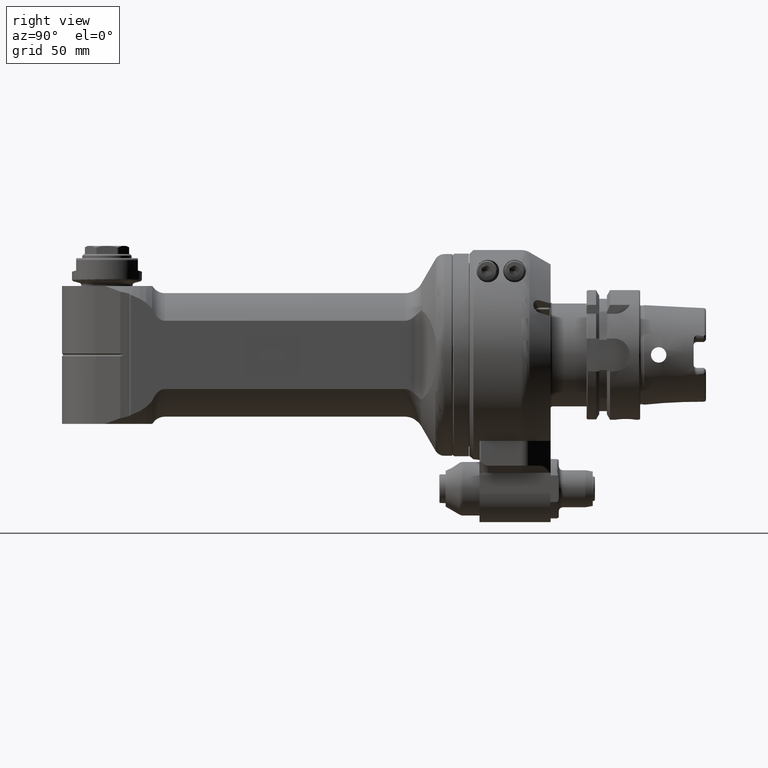
[diagram: clean part render]
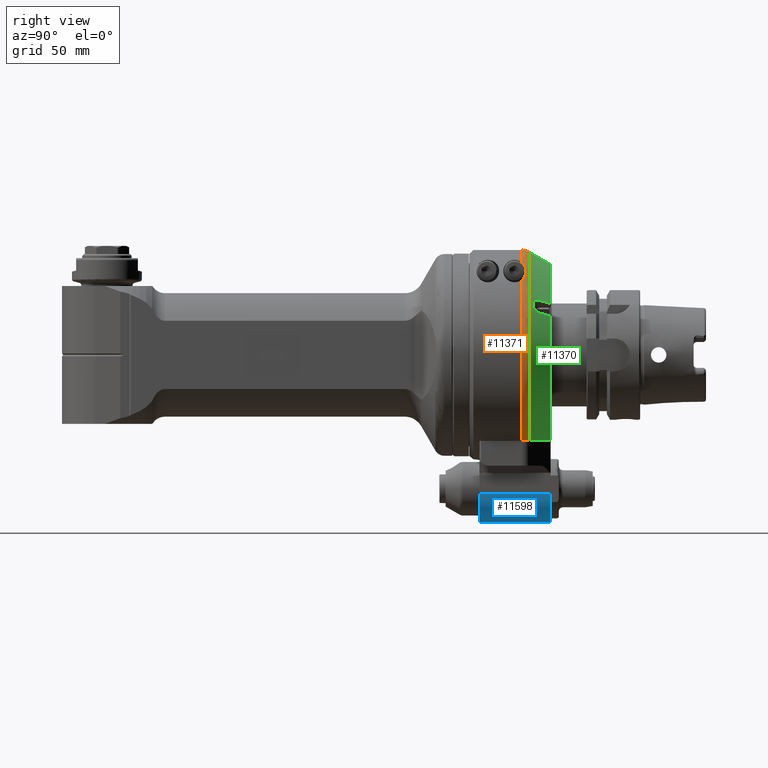
[diagram: same view with three faces highlighted in distinct colors, each labeled with its STEP entity id]
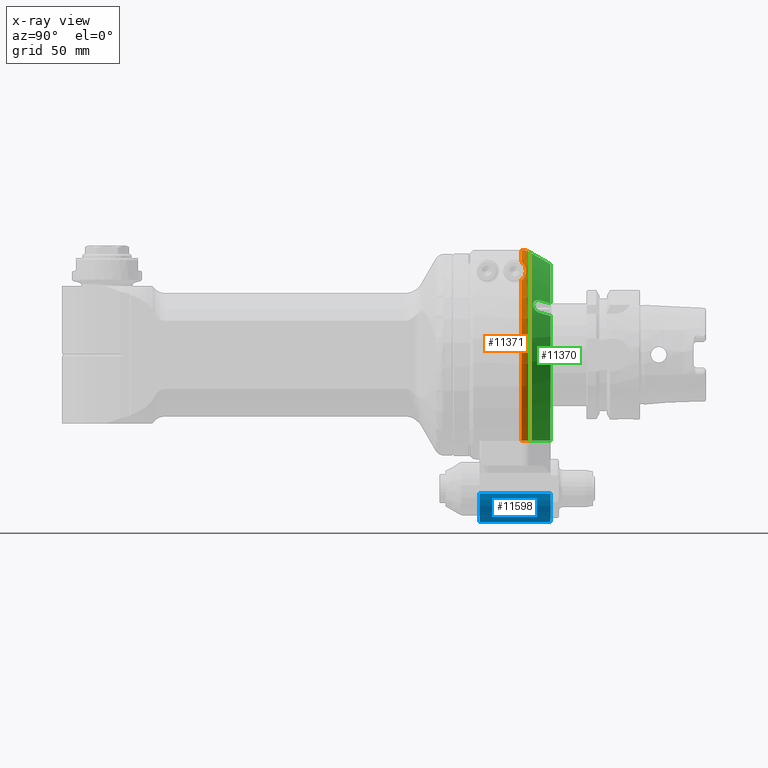
[diagram: x-ray of the same camera — body ghosted, the three highlighted faces saturated]
A machine part, right view with three faces highlighted in distinct colors.
The next image is the same camera in x-ray (body ghosted, the three faces saturated) — at least one of them is partly hidden behind the body in this view.
Their STEP definitions:

[orange] entity #11371 — the highlighted toroidal blend (fillet) surface has major radius 43 mm and minor (blend) radius 8 mm.
#92=TOROIDAL_SURFACE('',#12160,43.,8.);
#853=FACE_OUTER_BOUND('',#1492,.T.);
#1492=EDGE_LOOP('',(#7833,#7834,#7835,#7836,#7837,#7838));
#2212=CIRCLE('',#12114,51.);
#2213=CIRCLE('',#12115,51.);
#2234=CIRCLE('',#12157,49.92820323028);
#2725=B_SPLINE_CURVE_WITH_KNOTS('',3,(#16618,#16619,#16620,#16621,#16622,
#16623,#16624,#16625,#16626,#16627),.UNSPECIFIED.,.F.,.F.,(4,2,2,2,4),(-9.68559804021147,
-9.63577634006454,-9.4843525606202,-9.37005770955715,-9.2557628584941),
 .UNSPECIFIED.);
#2740=B_SPLINE_CURVE_WITH_KNOTS('',3,(#16937,#16938,#16939,#16940,#16941,
#16942,#16943,#16944),.UNSPECIFIED.,.F.,.F.,(4,2,2,4),(4.34441023881693,
4.44441523838835,4.59248867498487,4.74056211158139),.UNSPECIFIED.);
#2743=B_SPLINE_CURVE_WITH_KNOTS('',3,(#16976,#16977,#16978,#16979,#16980,
#16981,#16982,#16983,#16984,#16985,#16986,#16987,#16988,#16989,#16990,#16991),
 .UNSPECIFIED.,.F.,.F.,(4,3,3,3,3,4),(-9.34472443709596,-9.15576581563747,
-8.53592281537668,-8.19749167718073,-7.91960616501336,-7.85473194545352),
 .UNSPECIFIED.);
#4685=VERTEX_POINT('',#16583);
#4695=VERTEX_POINT('',#16614);
#4700=VERTEX_POINT('',#16638);
#4702=VERTEX_POINT('',#16647);
#4703=VERTEX_POINT('',#16674);
#4743=VERTEX_POINT('',#16925);
#5933=EDGE_CURVE('',#4695,#4685,#2725,.T.);
#5939=EDGE_CURVE('',#4700,#4685,#2212,.T.);
#5942=EDGE_CURVE('',#4703,#4702,#2213,.T.);
#6005=EDGE_CURVE('',#4743,#4703,#2740,.T.);
#6008=EDGE_CURVE('',#4695,#4743,#2234,.T.);
#6013=EDGE_CURVE('',#4702,#4700,#2743,.T.);
#7833=ORIENTED_EDGE('',*,*,#6008,.T.);
#7834=ORIENTED_EDGE('',*,*,#6005,.T.);
#7835=ORIENTED_EDGE('',*,*,#5942,.T.);
#7836=ORIENTED_EDGE('',*,*,#6013,.T.);
#7837=ORIENTED_EDGE('',*,*,#5939,.T.);
#7838=ORIENTED_EDGE('',*,*,#5933,.F.);
#11371=ADVANCED_FACE('',(#853),#92,.T.);
#12114=AXIS2_PLACEMENT_3D('',#16639,#13326,#13327);
#12115=AXIS2_PLACEMENT_3D('',#16675,#13328,#13329);
#12157=AXIS2_PLACEMENT_3D('',#16950,#13442,#13443);
#12160=AXIS2_PLACEMENT_3D('',#16975,#13448,#13449);
#13326=DIRECTION('center_axis',(-1.,0.,0.));
#13327=DIRECTION('ref_axis',(0.,-0.711205879844998,0.702983781088798));
#13328=DIRECTION('center_axis',(-1.,0.,0.));
#13329=DIRECTION('ref_axis',(0.,-0.999567380468613,0.0294117647058804));
#13442=DIRECTION('center_axis',(1.,0.,0.));
#13443=DIRECTION('ref_axis',(0.,0.836200730225418,0.548423503116412));
#13448=DIRECTION('center_axis',(1.,0.,0.));
#13449=DIRECTION('ref_axis',(0.,-1.,0.));
#16583=CARTESIAN_POINT('',(-37.23205080757,41.75,29.29057015492));
#16614=CARTESIAN_POINT('',(-41.23205080757,41.75,27.38180011986));
#16618=CARTESIAN_POINT('Ctrl Pts',(-41.2320508075675,41.75,27.3818001198576));
#16619=CARTESIAN_POINT('Ctrl Pts',(-41.1084978721799,41.75,27.5118698927609));
#16620=CARTESIAN_POINT('Ctrl Pts',(-40.9796012581369,41.75,27.63883358715));
#16621=CARTESIAN_POINT('Ctrl Pts',(-40.4412749376929,41.75,28.1311886381695));
#16622=CARTESIAN_POINT('Ctrl Pts',(-39.9932266664163,41.75,28.4521983127449));
#16623=CARTESIAN_POINT('Ctrl Pts',(-39.2119237728328,41.75,28.8694287521605));
#16624=CARTESIAN_POINT('Ctrl Pts',(-38.8258618631201,41.75,29.0288082766981));
#16625=CARTESIAN_POINT('Ctrl Pts',(-38.0264941442551,41.75,29.2396724058848));
#16626=CARTESIAN_POINT('Ctrl Pts',(-37.6130336444468,41.75,29.290570154915));
#16627=CARTESIAN_POINT('Ctrl Pts',(-37.23205080757,41.75,29.290570154915));
#16638=CARTESIAN_POINT('',(-37.23205080757,-36.27149987209,35.85217283553));
#16639=CARTESIAN_POINT('Origin',(-37.23205080757,0.,0.));
#16647=CARTESIAN_POINT('',(-37.23205080757,-45.1718026933,23.67505525733));
#16674=CARTESIAN_POINT('',(-37.2320508231036,-50.9779364044793,1.499999980309));
#16675=CARTESIAN_POINT('Origin',(-37.23205080757,0.,0.));
#16925=CARTESIAN_POINT('',(-41.2320587089715,-49.9056612221311,1.50000006858959));
#16937=CARTESIAN_POINT('Ctrl Pts',(-41.2320587100669,-49.9056612240274,
1.5));
#16938=CARTESIAN_POINT('Ctrl Pts',(-40.9199628642827,-50.0859316928166,
1.5));
#16939=CARTESIAN_POINT('Ctrl Pts',(-40.6009646113261,-50.2413262775005,
1.5));
#16940=CARTESIAN_POINT('Ctrl Pts',(-39.8370100654999,-50.5578441661684,
1.5));
#16941=CARTESIAN_POINT('Ctrl Pts',(-39.3203684112507,-50.7191785472564,
1.5));
#16942=CARTESIAN_POINT('Ctrl Pts',(-38.2646778846743,-50.9292248693063,
1.5));
#16943=CARTESIAN_POINT('Ctrl Pts',(-37.7256289314938,-50.9779364038993,
1.5));
#16944=CARTESIAN_POINT('Ctrl Pts',(-37.23205080757,-50.9779364038993,1.5));
#16950=CARTESIAN_POINT('Origin',(-41.23205080757,0.,0.));
#16975=CARTESIAN_POINT('Origin',(-37.23205080757,0.,0.));
#16976=CARTESIAN_POINT('Ctrl Pts',(-37.2320508075727,-45.1718026933004,
23.6750552573282));
#16977=CARTESIAN_POINT('Ctrl Pts',(-37.6059523067415,-44.9002459459361,
24.1931832058645));
#16978=CARTESIAN_POINT('Ctrl Pts',(-37.9420066961396,-44.583821938807,24.718802925503));
#16979=CARTESIAN_POINT('Ctrl Pts',(-38.2317635357579,-44.2347948006096,
25.2564932996317));
#16980=CARTESIAN_POINT('Ctrl Pts',(-39.1822560162215,-43.0898773216244,
27.0202848225526));
#16981=CARTESIAN_POINT('Ctrl Pts',(-39.5913735244697,-41.6682943531802,
28.8794189915673));
#16982=CARTESIAN_POINT('Ctrl Pts',(-39.4830876369283,-40.2906640836273,
30.7375607372434));
#16983=CARTESIAN_POINT('Ctrl Pts',(-39.4239640908758,-39.5384849351303,
31.7520967175706));
#16984=CARTESIAN_POINT('Ctrl Pts',(-39.2001167152273,-38.7666121290655,
32.7926546956175));
#16985=CARTESIAN_POINT('Ctrl Pts',(-38.8239051275744,-38.0796938038292,
33.6844936512119));
#16986=CARTESIAN_POINT('Ctrl Pts',(-38.5149981213353,-37.5156657665659,
34.4167818391937));
#16987=CARTESIAN_POINT('Ctrl Pts',(-38.1276341386855,-37.0238735561015,
35.0318289883221));
#16988=CARTESIAN_POINT('Ctrl Pts',(-37.6160859153108,-36.5775081079181,
35.5266834858267));
#16989=CARTESIAN_POINT('Ctrl Pts',(-37.4966615829668,-36.4733011276279,
35.6422105569248));
#16990=CARTESIAN_POINT('Ctrl Pts',(-37.368565930287,-36.3706479171666,35.751865154858));
#16991=CARTESIAN_POINT('Ctrl Pts',(-37.2320508075659,-36.2714998720946,
35.8521728355289));

[blue] entity #11598 — the highlighted cylindrical surface (edge-blend (fillet) strip) has radius 14 mm, axis along (0, 1, 0).
#1080=FACE_OUTER_BOUND('',#1742,.T.);
#1742=EDGE_LOOP('',(#9061,#9062,#9063,#9064));
#2406=CIRCLE('',#12553,14.);
#2415=CIRCLE('',#12571,14.);
#3210=LINE('',#19091,#4108);
#3211=LINE('',#19093,#4109);
#4108=VECTOR('',#14585,34.5);
#4109=VECTOR('',#14588,34.5);
#5120=VERTEX_POINT('',#18971);
#5121=VERTEX_POINT('',#18973);
#5146=VERTEX_POINT('',#19051);
#5147=VERTEX_POINT('',#19053);
#6573=EDGE_CURVE('',#5120,#5121,#2406,.T.);
#6610=EDGE_CURVE('',#5146,#5147,#2415,.T.);
#6630=EDGE_CURVE('',#5146,#5121,#3210,.T.);
#6631=EDGE_CURVE('',#5120,#5147,#3211,.T.);
#9061=ORIENTED_EDGE('',*,*,#6631,.T.);
#9062=ORIENTED_EDGE('',*,*,#6610,.F.);
#9063=ORIENTED_EDGE('',*,*,#6630,.T.);
#9064=ORIENTED_EDGE('',*,*,#6573,.F.);
#11240=CYLINDRICAL_SURFACE('',#12585,14.);
#11598=ADVANCED_FACE('',(#1080),#11240,.T.);
#12553=AXIS2_PLACEMENT_3D('',#18974,#14486,#14487);
#12571=AXIS2_PLACEMENT_3D('',#19054,#14546,#14547);
#12585=AXIS2_PLACEMENT_3D('',#19092,#14586,#14587);
#14486=DIRECTION('center_axis',(1.,0.,0.));
#14487=DIRECTION('ref_axis',(0.,1.,0.));
#14546=DIRECTION('center_axis',(-1.,0.,0.));
#14547=DIRECTION('ref_axis',(0.,0.,1.));
#14585=DIRECTION('',(1.,0.,0.));
#14586=DIRECTION('center_axis',(-1.,0.,0.));
#14587=DIRECTION('ref_axis',(0.,-1.,0.));
#14588=DIRECTION('',(-1.,0.,0.));
#18971=CARTESIAN_POINT('',(-17.,81.25,1.));
#18973=CARTESIAN_POINT('',(-17.,67.25,15.));
#18974=CARTESIAN_POINT('Origin',(-17.,67.25,1.));
#19051=CARTESIAN_POINT('',(-51.5,67.25,15.));
#19053=CARTESIAN_POINT('',(-51.5,81.25,1.));
#19054=CARTESIAN_POINT('Origin',(-51.5,67.25,1.));
#19091=CARTESIAN_POINT('',(-51.5,67.25,15.));
#19092=CARTESIAN_POINT('Origin',(-43.,67.25,1.));
#19093=CARTESIAN_POINT('',(-17.,81.25,1.));

[green] entity #11370 — the highlighted conical surface has half-angle 30 deg.
#240=(
BOUNDED_CURVE()
B_SPLINE_CURVE(2,(#16615,#16616,#16617),.UNSPECIFIED.,.F.,.F.)
B_SPLINE_CURVE_WITH_KNOTS((3,3),(-4.92391023083954,-2.81130786844121),
 .UNSPECIFIED.)
CURVE()
GEOMETRIC_REPRESENTATION_ITEM()
RATIONAL_B_SPLINE_CURVE((1.0074989594549,1.03062027413363,1.03252076511009))
REPRESENTATION_ITEM('')
);
#692=CONICAL_SURFACE('',#12156,46.96410161514,0.523598775598299);
#852=FACE_OUTER_BOUND('',#1491,.T.);
#1491=EDGE_LOOP('',(#7825,#7826,#7827,#7828,#7829,#7830,#7831,#7832));
#2234=CIRCLE('',#12157,49.92820323028);
#2235=CIRCLE('',#12158,44.);
#2236=CIRCLE('',#12159,44.);
#2737=B_SPLINE_CURVE_WITH_KNOTS('',3,(#16882,#16883,#16884,#16885,#16886,
#16887,#16888,#16889,#16890,#16891,#16892,#16893,#16894,#16895,#16896,#16897,
#16898,#16899),.UNSPECIFIED.,.F.,.F.,(4,2,2,2,2,2,2,2,4),(1.11206982951603,
1.24885677734264,1.4029266724495,1.5444028479349,1.68587902342029,1.82735519890569,
1.96883137439109,2.12290126949794,2.25968821731982),.UNSPECIFIED.);
#2739=B_SPLINE_CURVE_WITH_KNOTS('',3,(#16926,#16927,#16928,#16929,#16930,
#16931,#16932,#16933,#16934,#16935),.UNSPECIFIED.,.F.,.F.,(4,3,3,4),(0.,
0.3333333333333,0.6666666666667,1.),.UNSPECIFIED.);
#2741=B_SPLINE_CURVE_WITH_KNOTS('',3,(#16953,#16954,#16955,#16956,#16957,
#16958,#16959,#16960,#16961,#16962),.UNSPECIFIED.,.F.,.F.,(4,3,3,4),(0.,
0.3333333333333,0.6666666666667,1.),.UNSPECIFIED.);
#2742=B_SPLINE_CURVE_WITH_KNOTS('',3,(#16964,#16965,#16966,#16967,#16968,
#16969,#16970,#16971,#16972,#16973),.UNSPECIFIED.,.F.,.F.,(4,3,3,4),(0.,
0.3333333333333,0.6666666666667,1.),.UNSPECIFIED.);
#4694=VERTEX_POINT('',#16612);
#4695=VERTEX_POINT('',#16614);
#4736=VERTEX_POINT('',#16880);
#4737=VERTEX_POINT('',#16881);
#4742=VERTEX_POINT('',#16924);
#4743=VERTEX_POINT('',#16925);
#4746=VERTEX_POINT('',#16951);
#4747=VERTEX_POINT('',#16963);
#5932=EDGE_CURVE('',#4694,#4695,#240,.T.);
#5994=EDGE_CURVE('',#4736,#4737,#2737,.F.);
#6003=EDGE_CURVE('',#4742,#4743,#2739,.T.);
#6008=EDGE_CURVE('',#4695,#4743,#2234,.T.);
#6009=EDGE_CURVE('',#4746,#4694,#2235,.T.);
#6010=EDGE_CURVE('',#4746,#4737,#2741,.T.);
#6011=EDGE_CURVE('',#4736,#4747,#2742,.T.);
#6012=EDGE_CURVE('',#4742,#4747,#2236,.T.);
#7825=ORIENTED_EDGE('',*,*,#6008,.F.);
#7826=ORIENTED_EDGE('',*,*,#5932,.F.);
#7827=ORIENTED_EDGE('',*,*,#6009,.F.);
#7828=ORIENTED_EDGE('',*,*,#6010,.T.);
#7829=ORIENTED_EDGE('',*,*,#5994,.F.);
#7830=ORIENTED_EDGE('',*,*,#6011,.T.);
#7831=ORIENTED_EDGE('',*,*,#6012,.F.);
#7832=ORIENTED_EDGE('',*,*,#6003,.T.);
#11370=ADVANCED_FACE('',(#852),#692,.T.);
#12156=AXIS2_PLACEMENT_3D('',#16949,#13440,#13441);
#12157=AXIS2_PLACEMENT_3D('',#16950,#13442,#13443);
#12158=AXIS2_PLACEMENT_3D('',#16952,#13444,#13445);
#12159=AXIS2_PLACEMENT_3D('',#16974,#13446,#13447);
#13440=DIRECTION('center_axis',(1.,0.,0.));
#13441=DIRECTION('ref_axis',(0.,-1.,0.));
#13442=DIRECTION('center_axis',(1.,0.,0.));
#13443=DIRECTION('ref_axis',(0.,0.836200730225418,0.548423503116412));
#13444=DIRECTION('center_axis',(-1.,0.,0.));
#13445=DIRECTION('ref_axis',(0.,-0.429527235513105,0.90305390423411));
#13446=DIRECTION('center_axis',(-1.,0.,0.));
#13447=DIRECTION('ref_axis',(0.,-0.999418736024773,0.0340909090909091));
#16612=CARTESIAN_POINT('',(-51.5,41.75,13.89019438309));
#16614=CARTESIAN_POINT('',(-41.23205080757,41.75,27.38180011986));
#16615=CARTESIAN_POINT('Ctrl Pts',(-51.4999999999926,41.75,13.8901943831015));
#16616=CARTESIAN_POINT('Ctrl Pts',(-48.0442956678849,41.75,20.2102413125831));
#16617=CARTESIAN_POINT('Ctrl Pts',(-41.2320508075673,41.75,27.3818001198562));
#16880=CARTESIAN_POINT('',(-46.49999999996,-26.40905638146,38.74182743265));
#16881=CARTESIAN_POINT('',(-46.5,-20.34687855495,42.24182743261));
#16882=CARTESIAN_POINT('Ctrl Pts',(-46.5000000000022,-20.3468785549539,
42.2418274326121));
#16883=CARTESIAN_POINT('Ctrl Pts',(-46.0992085079171,-20.4629008008145,
42.4427838572514));
#16884=CARTESIAN_POINT('Ctrl Pts',(-45.6780271021369,-20.6496060415951,
42.6229397461814));
#16885=CARTESIAN_POINT('Ctrl Pts',(-44.8336229766582,-21.1765134567461,
42.9080443216851));
#16886=CARTESIAN_POINT('Ctrl Pts',(-44.416786404141,-21.5338827677997,43.000036123302));
#16887=CARTESIAN_POINT('Ctrl Pts',(-43.7689100689263,-22.2748250788787,
43.0423244163336));
#16888=CARTESIAN_POINT('Ctrl Pts',(-43.4858969585476,-22.7012115036421,
43.0050112903121));
#16889=CARTESIAN_POINT('Ctrl Pts',(-43.1011571537055,-23.5864558934365,
42.779754686541));
#16890=CARTESIAN_POINT('Ctrl Pts',(-43.,-24.0453321040545,42.5909113923236));
#16891=CARTESIAN_POINT('Ctrl Pts',(-43.,-24.8621451840586,42.1193241407056));
#16892=CARTESIAN_POINT('Ctrl Pts',(-43.1011571537054,-25.2551263794943,
41.8163473322267));
#16893=CARTESIAN_POINT('Ctrl Pts',(-43.4858969585476,-25.8928265156274,
41.1623315039927));
#16894=CARTESIAN_POINT('Ctrl Pts',(-43.7689100689263,-26.1383338430383,
40.8117265913295));
#16895=CARTESIAN_POINT('Ctrl Pts',(-44.416786404141,-26.4721822625297,40.1489075806805));
#16896=CARTESIAN_POINT('Ctrl Pts',(-44.8336229766582,-26.5711996809163,
39.7934207779667));
#16897=CARTESIAN_POINT('Ctrl Pts',(-45.6780271021231,-26.5877455833702,
39.1945532832615));
#16898=CARTESIAN_POINT('Ctrl Pts',(-46.0992085078879,-26.5250786273105,
38.9427838572684));
#16899=CARTESIAN_POINT('Ctrl Pts',(-46.4999999999604,-26.409056381457,38.7418274326329));
#16924=CARTESIAN_POINT('',(-51.5,-43.97442438509,1.5));
#16925=CARTESIAN_POINT('',(-41.2320587089715,-49.9056612221311,1.50000006858959));
#16926=CARTESIAN_POINT('Ctrl Pts',(-51.5,-43.97442438509,1.5));
#16927=CARTESIAN_POINT('Ctrl Pts',(-50.3591242554,-44.63349239584,1.5));
#16928=CARTESIAN_POINT('Ctrl Pts',(-49.2182445912652,-45.2925454352499,
1.5));
#16929=CARTESIAN_POINT('Ctrl Pts',(-48.0773635402228,-45.9515842405682,
1.5));
#16930=CARTESIAN_POINT('Ctrl Pts',(-46.9364824891801,-46.6106230458866,
1.5));
#16931=CARTESIAN_POINT('Ctrl Pts',(-45.7956000512299,-47.2696476171134,
1.5));
#16932=CARTESIAN_POINT('Ctrl Pts',(-44.6547122553372,-47.9286620207944,
1.5));
#16933=CARTESIAN_POINT('Ctrl Pts',(-43.5138244594448,-48.5876764244751,
1.5));
#16934=CARTESIAN_POINT('Ctrl Pts',(-42.37293130561,-49.24668066061,1.5));
#16935=CARTESIAN_POINT('Ctrl Pts',(-41.23206660847,-49.90565666041,1.5));
#16949=CARTESIAN_POINT('Origin',(-46.36602540378,0.,0.));
#16950=CARTESIAN_POINT('Origin',(-41.23205080757,0.,0.));
#16951=CARTESIAN_POINT('',(-51.5,-18.89919836257,39.7343717863));
#16952=CARTESIAN_POINT('Origin',(-51.5,0.,0.));
#16953=CARTESIAN_POINT('Ctrl Pts',(-51.5000000000014,-18.8991983625711,
39.7343717863022));
#16954=CARTESIAN_POINT('Ctrl Pts',(-50.9444542650933,-19.0600803989624,
40.0130276473551));
#16955=CARTESIAN_POINT('Ctrl Pts',(-50.388904658883,-19.2209523393287,40.2916660666116));
#16956=CARTESIAN_POINT('Ctrl Pts',(-49.8333517949314,-19.3818147452656,
40.5702879469609));
#16957=CARTESIAN_POINT('Ctrl Pts',(-49.2777989309796,-19.5426771512026,
40.8489098273103));
#16958=CARTESIAN_POINT('Ctrl Pts',(-48.7222428089151,-19.7035300221847,
41.12751516829));
#16959=CARTESIAN_POINT('Ctrl Pts',(-48.1666839961689,-19.8643738399584,
41.4061048113134));
#16960=CARTESIAN_POINT('Ctrl Pts',(-47.6111251834229,-20.0252176577319,
41.6846944543368));
#16961=CARTESIAN_POINT('Ctrl Pts',(-47.0555636796713,-20.186052421901,41.963268398972));
#16962=CARTESIAN_POINT('Ctrl Pts',(-46.5000000000021,-20.3468785549516,
42.2418274326133));
#16963=CARTESIAN_POINT('',(-51.5,-24.96137618907,36.2343717863));
#16964=CARTESIAN_POINT('Ctrl Pts',(-46.4999999999533,-26.4090563814534,
38.7418274326404));
#16965=CARTESIAN_POINT('Ctrl Pts',(-47.0555636796356,-26.2482302483957,
38.4632683989937));
#16966=CARTESIAN_POINT('Ctrl Pts',(-47.6111251834248,-26.0873955175853,
38.1846944350734));
#16967=CARTESIAN_POINT('Ctrl Pts',(-48.1666839961872,-25.9265517183778,
37.9061047813199));
#16968=CARTESIAN_POINT('Ctrl Pts',(-48.7222428089498,-25.7657079191702,
37.6275151275664));
#16969=CARTESIAN_POINT('Ctrl Pts',(-49.2777989310094,-25.6048550517416,
37.3489097845386));
#16970=CARTESIAN_POINT('Ctrl Pts',(-49.8333517949564,-25.4439926282768,
37.0702879143124));
#16971=CARTESIAN_POINT('Ctrl Pts',(-50.3889046589031,-25.283130204812,36.7916660440862));
#16972=CARTESIAN_POINT('Ctrl Pts',(-50.9444542651086,-25.1222582254486,
36.5130276473481));
#16973=CARTESIAN_POINT('Ctrl Pts',(-51.4999999999959,-24.9613761890659,
36.2343717863041));
#16974=CARTESIAN_POINT('Origin',(-51.5,0.,0.));